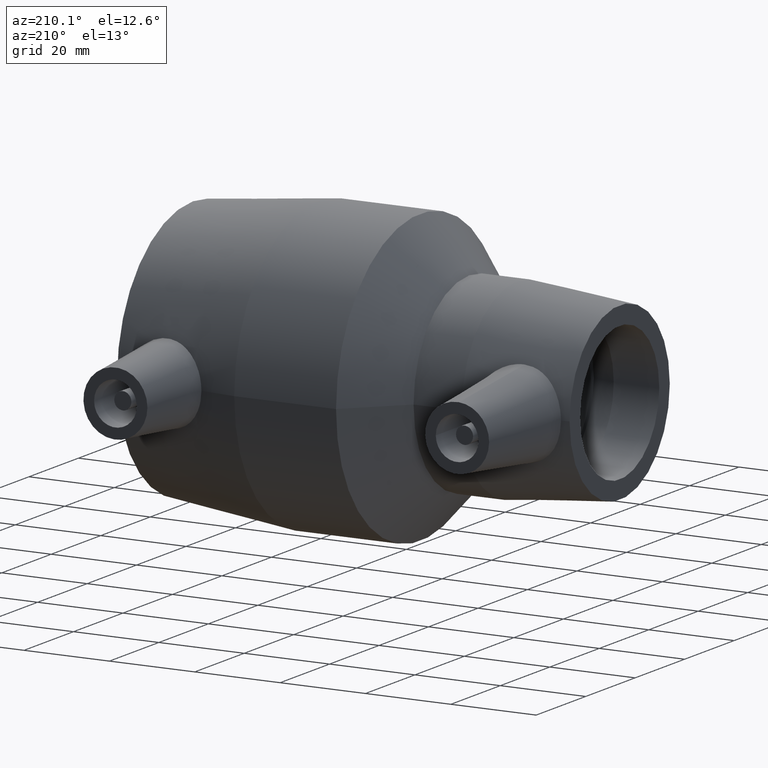
[diagram: clean part render]
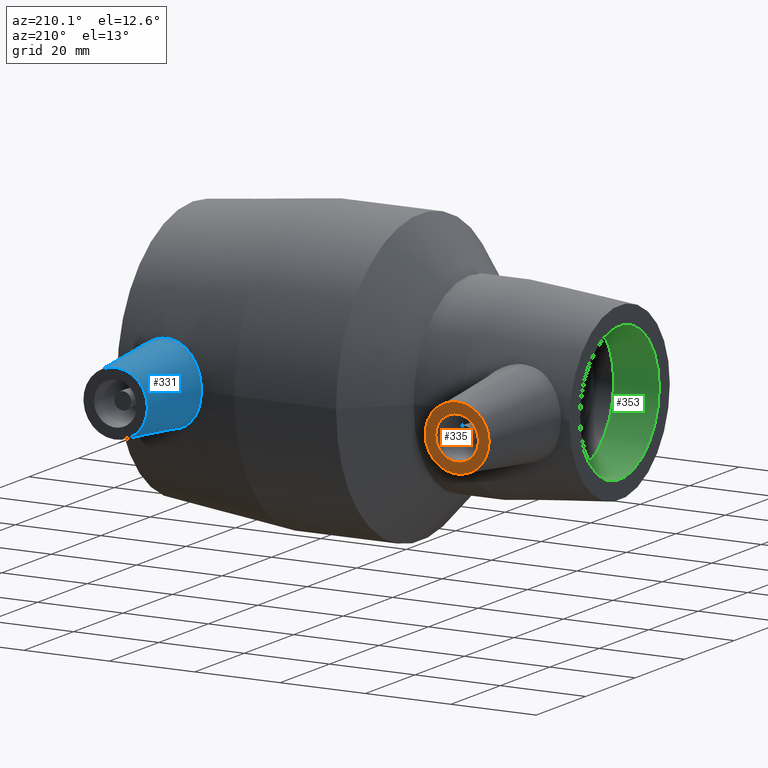
[diagram: same view with three faces highlighted in distinct colors, each labeled with its STEP entity id]
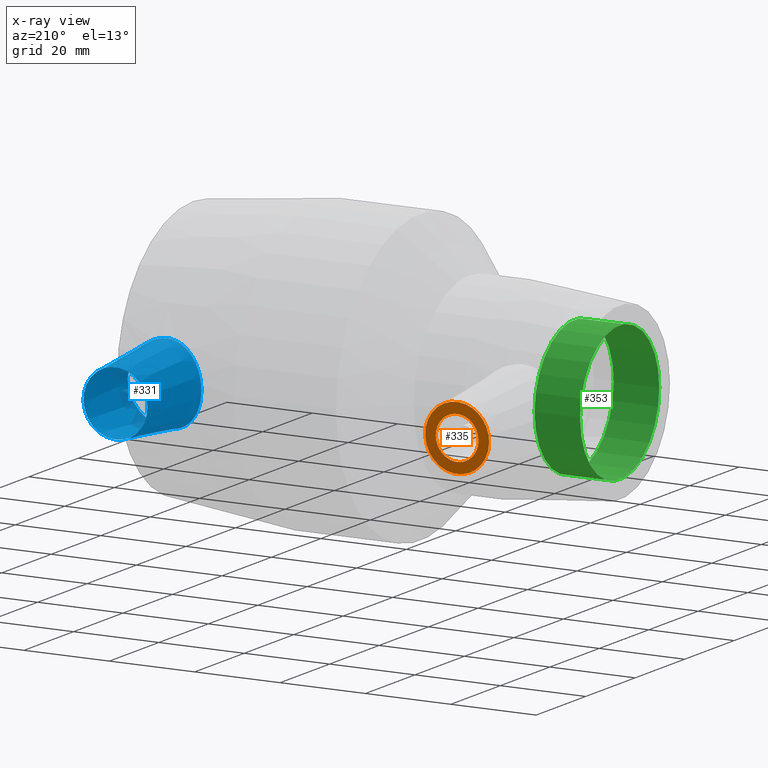
[diagram: x-ray of the same camera — body ghosted, the three highlighted faces saturated]
A machine part, auxiliary view with three faces highlighted in distinct colors.
The next image is the same camera in x-ray (body ghosted, the three faces saturated) — at least one of them is partly hidden behind the body in this view.
Their STEP definitions:

[orange] entity #335 — the highlighted planar face has unit normal (0, 1, 0).
#33=FACE_BOUND('',#117,.T.);
#77=FACE_OUTER_BOUND('',#116,.T.);
#116=EDGE_LOOP('',(#269));
#117=EDGE_LOOP('',(#270));
#168=CIRCLE('',#375,5.);
#169=CIRCLE('',#378,7.5);
#198=VERTEX_POINT('',#601);
#199=VERTEX_POINT('',#605);
#229=EDGE_CURVE('',#198,#198,#168,.T.);
#230=EDGE_CURVE('',#199,#199,#169,.T.);
#269=ORIENTED_EDGE('',*,*,#230,.F.);
#270=ORIENTED_EDGE('',*,*,#229,.T.);
#318=PLANE('',#377);
#335=ADVANCED_FACE('',(#77,#33),#318,.T.);
#375=AXIS2_PLACEMENT_3D('',#602,#454,#455);
#377=AXIS2_PLACEMENT_3D('',#604,#458,#459);
#378=AXIS2_PLACEMENT_3D('',#606,#460,#461);
#454=DIRECTION('center_axis',(0.,-1.,0.));
#455=DIRECTION('ref_axis',(-1.,0.,0.));
#458=DIRECTION('center_axis',(0.,1.,0.));
#459=DIRECTION('ref_axis',(0.,0.,1.));
#460=DIRECTION('center_axis',(0.,-1.,0.));
#461=DIRECTION('ref_axis',(1.,0.,0.));
#601=CARTESIAN_POINT('',(-33.,45.,-6.12323399573677E-16));
#602=CARTESIAN_POINT('Origin',(-38.,45.,0.));
#604=CARTESIAN_POINT('Origin',(-38.,45.,1.2335811384724E-16));
#605=CARTESIAN_POINT('',(-45.5,45.,9.18485099360515E-16));
#606=CARTESIAN_POINT('Origin',(-38.,45.,0.));

[blue] entity #331 — the highlighted conical surface has half-angle 5 deg.
#15=B_SPLINE_CURVE_WITH_KNOTS('',3,(#561,#562,#563,#564,#565,#566,#567,
#568,#569,#570,#571,#572,#573,#574,#575,#576,#577,#578,#579,#580,#581,#582,
#583,#584,#585,#586,#587,#588,#589,#590,#591,#592,#593,#594),
 .UNSPECIFIED.,.T.,.F.,(4,2,2,2,2,2,2,2,2,2,2,2,2,2,2,2,4),(0.,0.342432734766515,
0.684865469533029,1.02997856915003,1.37509166876702,1.72020476838402,2.06531786800102,
2.40775060276753,2.75018333753405,3.11916726229036,3.48815118704667,3.84866135423517,
4.20917152142366,4.56968168861216,4.93019185580066,5.29917578055697,5.66815970531328),
 .UNSPECIFIED.);
#17=CONICAL_SURFACE('',#370,7.5,5.);
#29=FACE_BOUND('',#109,.T.);
#73=FACE_OUTER_BOUND('',#108,.T.);
#108=EDGE_LOOP('',(#261));
#109=EDGE_LOOP('',(#262));
#165=CIRCLE('',#369,7.5);
#194=VERTEX_POINT('',#557);
#195=VERTEX_POINT('',#560);
#225=EDGE_CURVE('',#194,#194,#165,.T.);
#226=EDGE_CURVE('',#195,#195,#15,.T.);
#261=ORIENTED_EDGE('',*,*,#225,.T.);
#262=ORIENTED_EDGE('',*,*,#226,.F.);
#331=ADVANCED_FACE('',(#73,#29),#17,.T.);
#369=AXIS2_PLACEMENT_3D('',#558,#442,#443);
#370=AXIS2_PLACEMENT_3D('',#559,#444,#445);
#442=DIRECTION('center_axis',(0.,-1.,0.));
#443=DIRECTION('ref_axis',(1.,0.,0.));
#444=DIRECTION('center_axis',(0.,-1.,0.));
#445=DIRECTION('ref_axis',(1.,0.,0.));
#557=CARTESIAN_POINT('',(30.5,52.,9.18485099360515E-16));
#558=CARTESIAN_POINT('Origin',(38.,52.,0.));
#559=CARTESIAN_POINT('Origin',(38.,52.,0.));
#560=CARTESIAN_POINT('',(38.4085254810939,30.5355225087836,-9.3689960108244));
#561=CARTESIAN_POINT('Ctrl Pts',(38.4085254810939,30.5355225087836,-9.36899601082441));
#562=CARTESIAN_POINT('Ctrl Pts',(39.5424107903605,30.4101609984625,-9.33053223507696));
#563=CARTESIAN_POINT('Ctrl Pts',(40.7490617034868,30.3487939558085,-9.06422943247845));
#564=CARTESIAN_POINT('Ctrl Pts',(42.956955881338,30.3641392340035,-8.06975601493136));
#565=CARTESIAN_POINT('Ctrl Pts',(43.9583183693886,30.4365503841,-7.34178839052401));
#566=CARTESIAN_POINT('Ctrl Pts',(45.5363006633839,30.6031300509679,-5.68810780576688));
#567=CARTESIAN_POINT('Ctrl Pts',(46.2192072077118,30.7083425914643,-4.64731901678957));
#568=CARTESIAN_POINT('Ctrl Pts',(47.1238051543204,30.8619399077858,-2.37858520128931));
#569=CARTESIAN_POINT('Ctrl Pts',(47.3453988441869,30.9069946914886,-1.15037699872333));
#570=CARTESIAN_POINT('Ctrl Pts',(47.3453988441869,30.9069946914886,1.15037699872333));
#571=CARTESIAN_POINT('Ctrl Pts',(47.1238051543204,30.8619399077858,2.37858520128931));
#572=CARTESIAN_POINT('Ctrl Pts',(46.2192072077118,30.7083425914643,4.64731901678956));
#573=CARTESIAN_POINT('Ctrl Pts',(45.5363006633839,30.6031300509679,5.68810780576688));
#574=CARTESIAN_POINT('Ctrl Pts',(43.9583183693886,30.4365503841,7.34178839052401));
#575=CARTESIAN_POINT('Ctrl Pts',(42.956955881338,30.3641392340035,8.06975601493136));
#576=CARTESIAN_POINT('Ctrl Pts',(40.7490617034868,30.3487939558085,9.06422943247845));
#577=CARTESIAN_POINT('Ctrl Pts',(39.5424107903605,30.4101609984625,9.33053223507696));
#578=CARTESIAN_POINT('Ctrl Pts',(37.186722162781,30.6706041683193,9.41044215044629));
#579=CARTESIAN_POINT('Ctrl Pts',(35.8943817477014,30.8964776332697,9.19459344926441));
#580=CARTESIAN_POINT('Ctrl Pts',(33.528955443483,31.4444182565663,8.25167606210774));
#581=CARTESIAN_POINT('Ctrl Pts',(32.4545607247763,31.7617776769293,7.52516142753915));
#582=CARTESIAN_POINT('Ctrl Pts',(30.7765229812766,32.3087200692648,5.85245393581107));
#583=CARTESIAN_POINT('Ctrl Pts',(30.0518227851557,32.5762004731236,4.79999589671865));
#584=CARTESIAN_POINT('Ctrl Pts',(29.0841659888349,32.9469362120325,2.47500993053819));
#585=CARTESIAN_POINT('Ctrl Pts',(28.8418155378304,33.0468648697747,1.20170055729499));
#586=CARTESIAN_POINT('Ctrl Pts',(28.8418155378304,33.0468648697747,-1.20170055729498));
#587=CARTESIAN_POINT('Ctrl Pts',(29.0841659888349,32.9469362120325,-2.47500993053819));
#588=CARTESIAN_POINT('Ctrl Pts',(30.0518227851557,32.5762004731237,-4.79999589671865));
#589=CARTESIAN_POINT('Ctrl Pts',(30.7765229812766,32.3087200692648,-5.85245393581107));
#590=CARTESIAN_POINT('Ctrl Pts',(32.4545607247763,31.7617776769293,-7.52516142753915));
#591=CARTESIAN_POINT('Ctrl Pts',(33.528955443483,31.4444182565663,-8.25167606210774));
#592=CARTESIAN_POINT('Ctrl Pts',(35.8943817477014,30.8964776332697,-9.19459344926441));
#593=CARTESIAN_POINT('Ctrl Pts',(37.186722162781,30.6706041683193,-9.41044215044629));
#594=CARTESIAN_POINT('Ctrl Pts',(38.4085254810939,30.5355225087836,-9.3689960108244));

[green] entity #353 — the highlighted cylindrical surface (bore or boss wall) has radius 16 mm, axis along (1, 0, 0).
#52=FACE_BOUND('',#154,.T.);
#66=CYLINDRICAL_SURFACE('',#413,16.);
#95=FACE_OUTER_BOUND('',#153,.T.);
#153=EDGE_LOOP('',(#306));
#154=EDGE_LOOP('',(#307));
#186=CIRCLE('',#412,16.);
#187=CIRCLE('',#414,16.);
#217=VERTEX_POINT('',#691);
#218=VERTEX_POINT('',#694);
#248=EDGE_CURVE('',#217,#217,#186,.T.);
#249=EDGE_CURVE('',#218,#218,#187,.T.);
#306=ORIENTED_EDGE('',*,*,#249,.F.);
#307=ORIENTED_EDGE('',*,*,#248,.T.);
#353=ADVANCED_FACE('',(#95,#52),#66,.F.);
#412=AXIS2_PLACEMENT_3D('',#692,#528,#529);
#413=AXIS2_PLACEMENT_3D('',#693,#530,#531);
#414=AXIS2_PLACEMENT_3D('',#695,#532,#533);
#528=DIRECTION('center_axis',(1.,1.83697019872103E-16,0.));
#529=DIRECTION('ref_axis',(0.,0.,-1.));
#530=DIRECTION('center_axis',(1.,1.83697019872103E-16,0.));
#531=DIRECTION('ref_axis',(-2.09206917912125E-16,1.,0.));
#532=DIRECTION('center_axis',(1.,1.83697019872103E-16,0.));
#533=DIRECTION('ref_axis',(0.,0.,-1.));
#691=CARTESIAN_POINT('',(-39.3333333333333,16.,0.));
#692=CARTESIAN_POINT('Origin',(-39.3333333333333,1.95943487863577E-15,0.));
#693=CARTESIAN_POINT('Origin',(-44.6666666666667,9.79717439317883E-16,0.));
#694=CARTESIAN_POINT('',(-50.,16.,0.));
#695=CARTESIAN_POINT('Origin',(-50.,4.93038065763132E-31,0.));